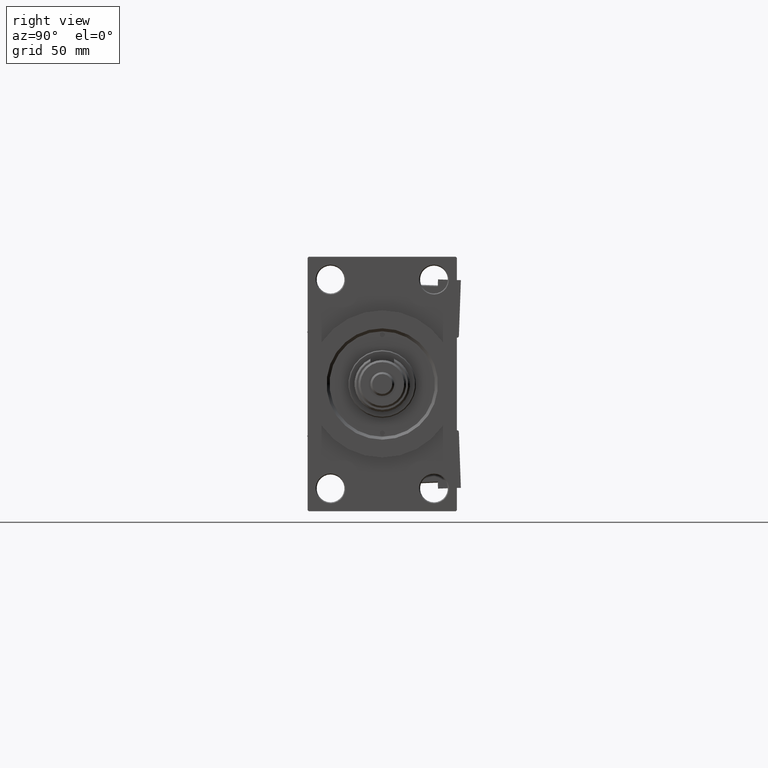
[diagram: clean part render]
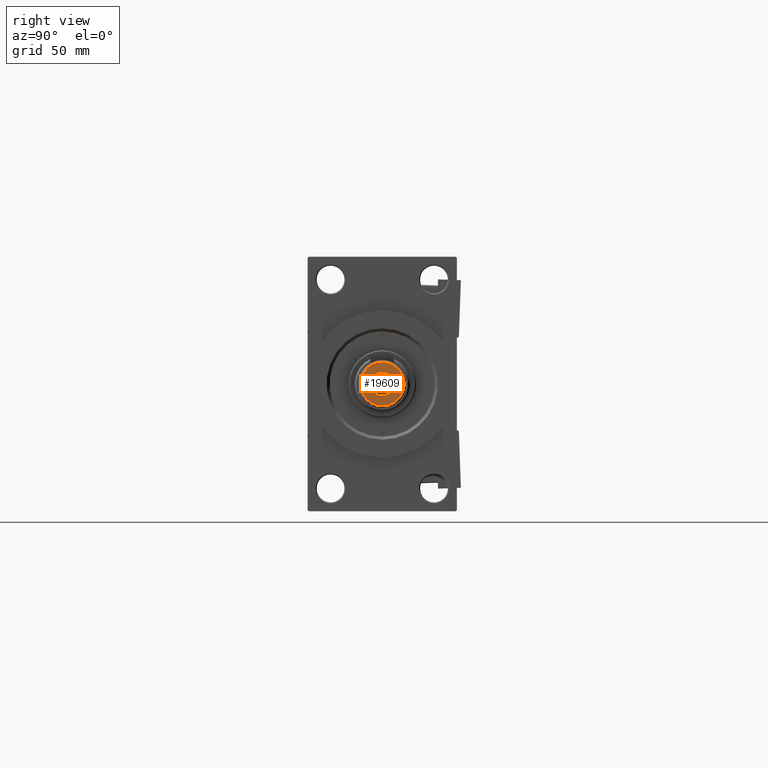
[diagram: same view with one face highlighted and labeled with its STEP entity id]
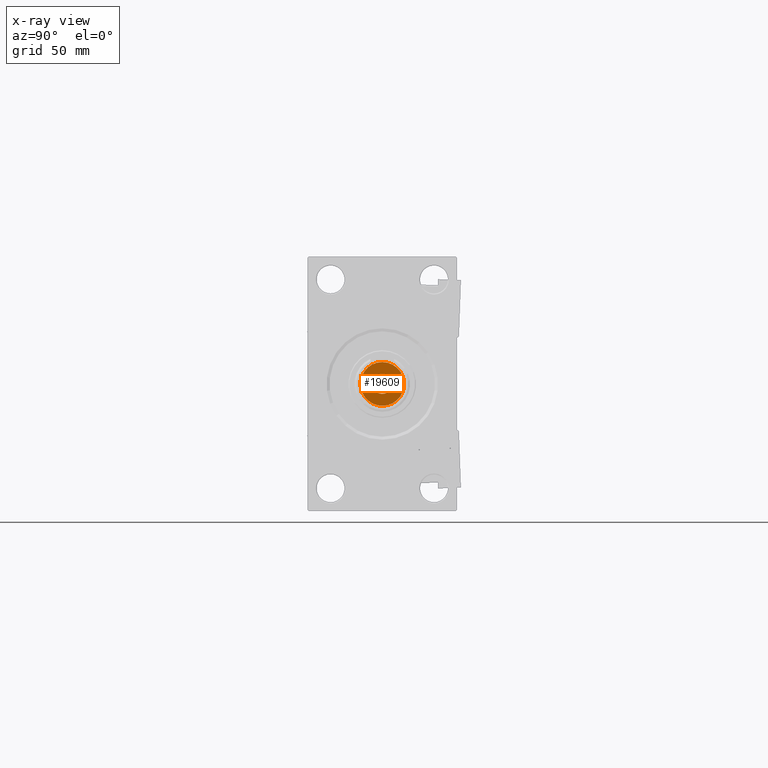
[diagram: x-ray of the same camera — body ghosted, the highlighted face saturated]
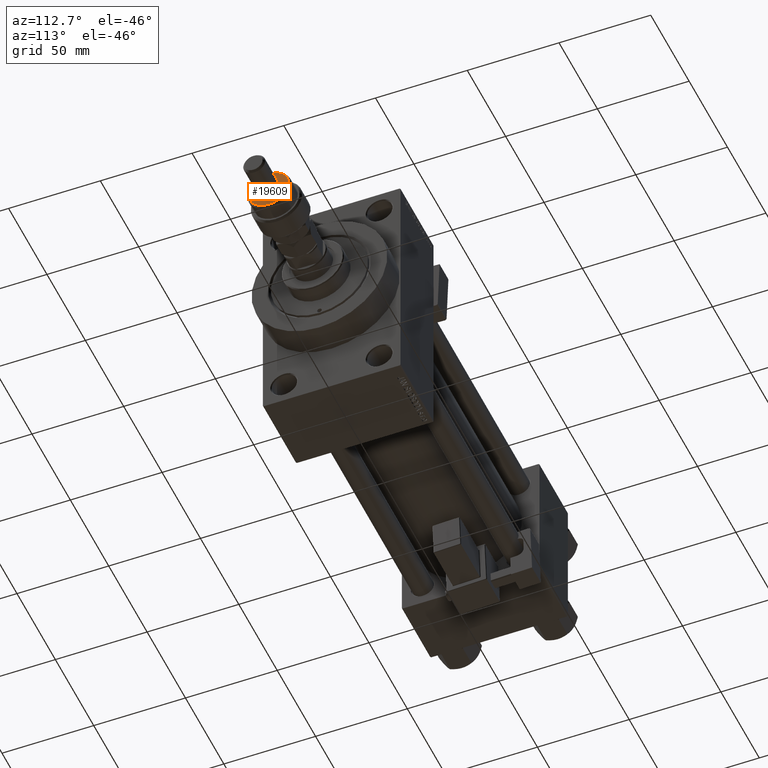
[diagram: same view with one face highlighted and labeled with its STEP entity id]
A machine part, right view. The second image highlights one B-rep face of the part: STEP entity #19609.
The next image is the same camera in x-ray: the body ghosted, the highlighted face saturated — about 0% of this face is hidden behind the body in this view.
A second angle (auxiliary view) of the same face is appended — the face is thin or edge-on in the first view.
In plain terms, the highlighted planar face has unit normal (1, 0, 0).
Its self-contained STEP definition (entity closure, byte-faithful):
#793 = ORIENTED_EDGE ( 'NONE', *, *, #16233, .F. ) ;
#1604 = EDGE_CURVE ( 'NONE', #16097, #8824, #38716, .T. ) ;
#3279 = CARTESIAN_POINT ( 'NONE',  ( 0.000000000000000000, 0.000000000000000000, 22.00000000000000000 ) ) ;
#3485 = CIRCLE ( 'NONE', #6015, 10.99999999999999645 ) ;
#4456 = ORIENTED_EDGE ( 'NONE', *, *, #38959, .T. ) ;
#6015 = AXIS2_PLACEMENT_3D ( 'NONE', #37410, #33422, #49576 ) ;
#6515 = CIRCLE ( 'NONE', #50556, 10.99999999999999645 ) ;
#7190 = FACE_BOUND ( 'NONE', #13094, .T. ) ;
#8824 = VERTEX_POINT ( 'NONE', #14566 ) ;
#11126 = CARTESIAN_POINT ( 'NONE',  ( 0.000000000000000000, 0.000000000000000000, 22.00000000000000000 ) ) ;
#12180 = DIRECTION ( 'NONE',  ( 1.000000000000000000, 0.000000000000000000, 0.000000000000000000 ) ) ;
#13094 = EDGE_LOOP ( 'NONE', ( #793, #23076 ) ) ;
#14297 = CARTESIAN_POINT ( 'NONE',  ( 0.000000000000000000, 0.000000000000000000, 22.00000000000000000 ) ) ;
#14566 = CARTESIAN_POINT ( 'NONE',  ( -5.000000000000000000, 0.000000000000000000, 22.00000000000000000 ) ) ;
#16097 = VERTEX_POINT ( 'NONE', #18545 ) ;
#16233 = EDGE_CURVE ( 'NONE', #8824, #16097, #25721, .T. ) ;
#18529 = DIRECTION ( 'NONE',  ( 0.000000000000000000, 0.000000000000000000, 1.000000000000000000 ) ) ;
#18545 = CARTESIAN_POINT ( 'NONE',  ( 5.000000000000000000, 6.123233995736766282E-16, 22.00000000000000000 ) ) ;
#19609 = ADVANCED_FACE ( 'NONE', ( #43522, #7190 ), #28142, .T. ) ;
#19842 = AXIS2_PLACEMENT_3D ( 'NONE', #11126, #48518, #12180 ) ;
#20606 = ORIENTED_EDGE ( 'NONE', *, *, #30716, .T. ) ;
#23076 = ORIENTED_EDGE ( 'NONE', *, *, #1604, .F. ) ;
#23611 = DIRECTION ( 'NONE',  ( 0.000000000000000000, 0.000000000000000000, 1.000000000000000000 ) ) ;
#25721 = CIRCLE ( 'NONE', #19842, 5.000000000000000000 ) ;
#27339 = DIRECTION ( 'NONE',  ( 1.000000000000000000, 0.000000000000000000, -0.000000000000000000 ) ) ;
#28142 = PLANE ( 'NONE',  #44492 ) ;
#28560 = AXIS2_PLACEMENT_3D ( 'NONE', #14297, #18529, #30476 ) ;
#30032 = CARTESIAN_POINT ( 'NONE',  ( -10.99999999999999645, 0.000000000000000000, 22.00000000000000000 ) ) ;
#30476 = DIRECTION ( 'NONE',  ( 1.000000000000000000, 0.000000000000000000, 0.000000000000000000 ) ) ;
#30716 = EDGE_CURVE ( 'NONE', #44616, #44721, #6515, .T. ) ;
#32236 = CARTESIAN_POINT ( 'NONE',  ( 10.99999999999999645, 1.408343819019456176E-15, 22.00000000000000000 ) ) ;
#33422 = DIRECTION ( 'NONE',  ( 0.000000000000000000, 0.000000000000000000, 1.000000000000000000 ) ) ;
#37410 = CARTESIAN_POINT ( 'NONE',  ( 0.000000000000000000, 0.000000000000000000, 22.00000000000000000 ) ) ;
#38716 = CIRCLE ( 'NONE', #28560, 5.000000000000000000 ) ;
#38959 = EDGE_CURVE ( 'NONE', #44721, #44616, #3485, .T. ) ;
#40254 = EDGE_LOOP ( 'NONE', ( #4456, #20606 ) ) ;
#43522 = FACE_OUTER_BOUND ( 'NONE', #40254, .T. ) ;
#44492 = AXIS2_PLACEMENT_3D ( 'NONE', #51747, #23611, #27339 ) ;
#44616 = VERTEX_POINT ( 'NONE', #32236 ) ;
#44721 = VERTEX_POINT ( 'NONE', #30032 ) ;
#48518 = DIRECTION ( 'NONE',  ( 0.000000000000000000, 0.000000000000000000, 1.000000000000000000 ) ) ;
#49576 = DIRECTION ( 'NONE',  ( 1.000000000000000000, 0.000000000000000000, 0.000000000000000000 ) ) ;
#50556 = AXIS2_PLACEMENT_3D ( 'NONE', #3279, #51054, #51311 ) ;
#51054 = DIRECTION ( 'NONE',  ( 0.000000000000000000, 0.000000000000000000, 1.000000000000000000 ) ) ;
#51311 = DIRECTION ( 'NONE',  ( 1.000000000000000000, 0.000000000000000000, 0.000000000000000000 ) ) ;
#51747 = CARTESIAN_POINT ( 'NONE',  ( 0.000000000000000000, 0.000000000000000000, 22.00000000000000000 ) ) ;